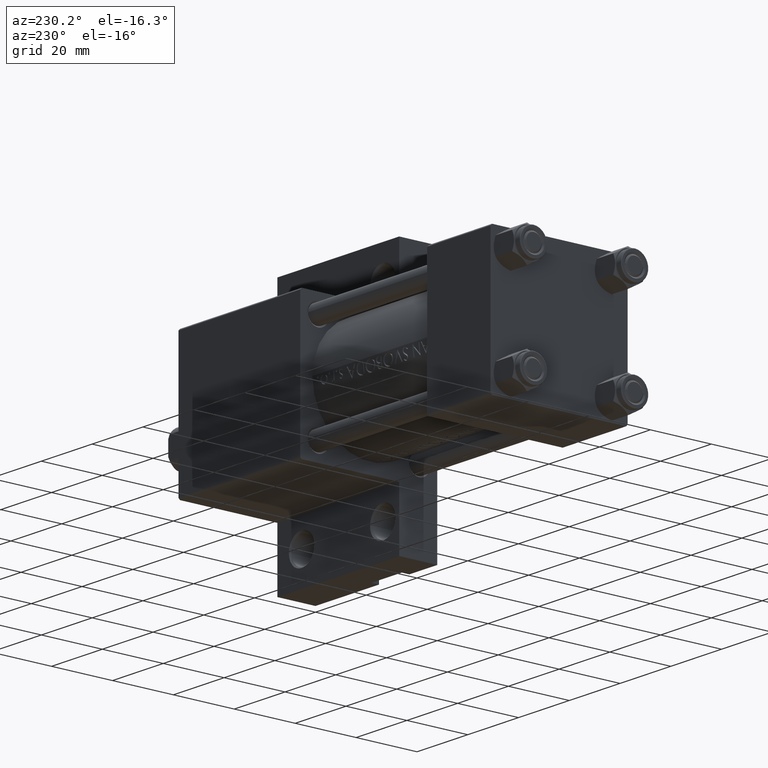
[diagram: clean part render]
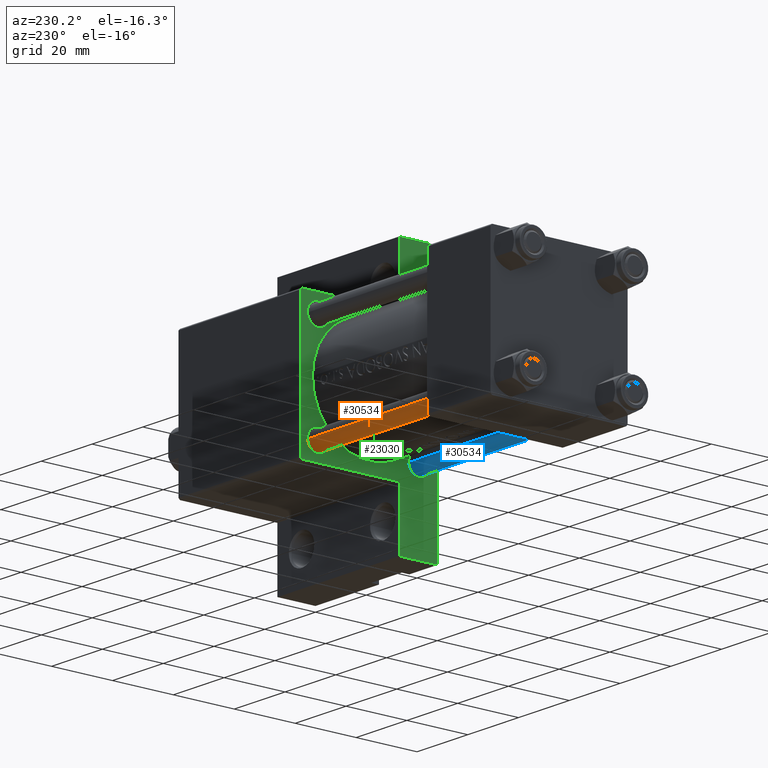
[diagram: same view with three faces highlighted in distinct colors, each labeled with its STEP entity id]
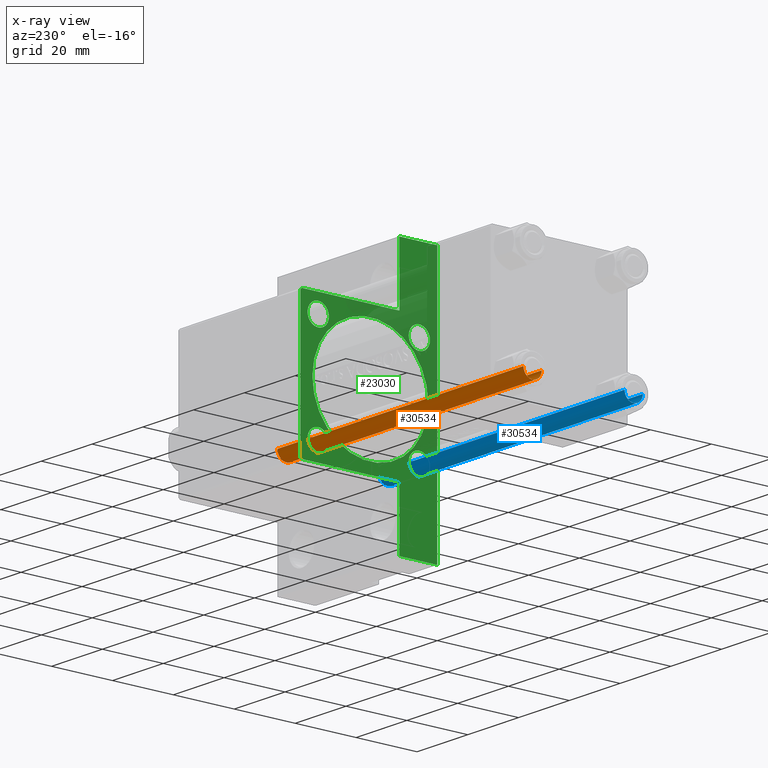
[diagram: x-ray of the same camera — body ghosted, the three highlighted faces saturated]
A machine part, auxiliary view with three faces highlighted in distinct colors.
The next image is the same camera in x-ray (body ghosted, the three faces saturated) — at least one of them is partly hidden behind the body in this view.
Their STEP definitions:

[orange] entity #30534 — the highlighted cylindrical surface (edge-blend (fillet) strip) has radius 3 mm, axis along (-1, -0, 0).
#365 = VERTEX_POINT ( 'NONE', #45875 ) ;
#1061 = LINE ( 'NONE', #38213, #12818 ) ;
#1791 = EDGE_CURVE ( 'NONE', #9709, #365, #16049, .T. ) ;
#3001 = CIRCLE ( 'NONE', #5349, 3.000000000000000444 ) ;
#3372 = VERTEX_POINT ( 'NONE', #23067 ) ;
#3384 = CARTESIAN_POINT ( 'NONE',  ( 3.000000000000000444, 3.673940397442060361E-16, 98.00000000000000000 ) ) ;
#5349 = AXIS2_PLACEMENT_3D ( 'NONE', #13788, #18122, #10887 ) ;
#7688 = EDGE_LOOP ( 'NONE', ( #22106, #36361, #37139, #12089 ) ) ;
#7711 = DIRECTION ( 'NONE',  ( -0.000000000000000000, -0.000000000000000000, -1.000000000000000000 ) ) ;
#8176 = DIRECTION ( 'NONE',  ( -1.000000000000000000, 0.000000000000000000, 0.000000000000000000 ) ) ;
#8416 = CYLINDRICAL_SURFACE ( 'NONE', #35685, 3.000000000000000444 ) ;
#9096 = AXIS2_PLACEMENT_3D ( 'NONE', #9799, #36086, #46955 ) ;
#9709 = VERTEX_POINT ( 'NONE', #46388 ) ;
#9799 = CARTESIAN_POINT ( 'NONE',  ( 0.000000000000000000, 0.000000000000000000, 97.50000000000001421 ) ) ;
#10887 = DIRECTION ( 'NONE',  ( 1.000000000000000000, 0.000000000000000000, 0.000000000000000000 ) ) ;
#12089 = ORIENTED_EDGE ( 'NONE', *, *, #20474, .T. ) ;
#12818 = VECTOR ( 'NONE', #15776, 1000.000000000000000 ) ;
#13788 = CARTESIAN_POINT ( 'NONE',  ( 0.000000000000000000, 0.000000000000000000, 0.5000000000000281997 ) ) ;
#15776 = DIRECTION ( 'NONE',  ( -0.000000000000000000, -0.000000000000000000, -1.000000000000000000 ) ) ;
#16049 = CIRCLE ( 'NONE', #9096, 3.000000000000000444 ) ;
#18122 = DIRECTION ( 'NONE',  ( -0.000000000000000000, -0.000000000000000000, 1.000000000000000000 ) ) ;
#20474 = EDGE_CURVE ( 'NONE', #3372, #41936, #3001, .T. ) ;
#22106 = ORIENTED_EDGE ( 'NONE', *, *, #32683, .F. ) ;
#23067 = CARTESIAN_POINT ( 'NONE',  ( -3.000000000000000444, 0.000000000000000000, 0.5000000000000281997 ) ) ;
#26272 = CARTESIAN_POINT ( 'NONE',  ( 0.000000000000000000, 0.000000000000000000, 98.00000000000000000 ) ) ;
#29231 = CARTESIAN_POINT ( 'NONE',  ( 3.000000000000000444, 3.673940397442060361E-16, 0.5000000000000281997 ) ) ;
#30534 = ADVANCED_FACE ( 'NONE', ( #33745 ), #8416, .T. ) ;
#32683 = EDGE_CURVE ( 'NONE', #9709, #41936, #37373, .T. ) ;
#33745 = FACE_OUTER_BOUND ( 'NONE', #7688, .T. ) ;
#35685 = AXIS2_PLACEMENT_3D ( 'NONE', #26272, #7711, #8176 ) ;
#36086 = DIRECTION ( 'NONE',  ( 0.000000000000000000, 0.000000000000000000, -1.000000000000000000 ) ) ;
#36361 = ORIENTED_EDGE ( 'NONE', *, *, #1791, .T. ) ;
#37139 = ORIENTED_EDGE ( 'NONE', *, *, #39284, .T. ) ;
#37373 = LINE ( 'NONE', #3384, #41015 ) ;
#38213 = CARTESIAN_POINT ( 'NONE',  ( -3.000000000000000444, 0.000000000000000000, 98.00000000000000000 ) ) ;
#39284 = EDGE_CURVE ( 'NONE', #365, #3372, #1061, .T. ) ;
#41015 = VECTOR ( 'NONE', #44384, 1000.000000000000000 ) ;
#41936 = VERTEX_POINT ( 'NONE', #29231 ) ;
#44384 = DIRECTION ( 'NONE',  ( -0.000000000000000000, -0.000000000000000000, -1.000000000000000000 ) ) ;
#45875 = CARTESIAN_POINT ( 'NONE',  ( -3.000000000000000444, 0.000000000000000000, 97.50000000000001421 ) ) ;
#46388 = CARTESIAN_POINT ( 'NONE',  ( 3.000000000000000444, 3.673940397442060361E-16, 97.50000000000001421 ) ) ;
#46955 = DIRECTION ( 'NONE',  ( 1.000000000000000000, 0.000000000000000000, 0.000000000000000000 ) ) ;

[blue] entity #30534 — the highlighted cylindrical surface (edge-blend (fillet) strip) has radius 3 mm, axis along (1, 0, 0).
#365 = VERTEX_POINT ( 'NONE', #45875 ) ;
#1061 = LINE ( 'NONE', #38213, #12818 ) ;
#1791 = EDGE_CURVE ( 'NONE', #9709, #365, #16049, .T. ) ;
#3001 = CIRCLE ( 'NONE', #5349, 3.000000000000000444 ) ;
#3372 = VERTEX_POINT ( 'NONE', #23067 ) ;
#3384 = CARTESIAN_POINT ( 'NONE',  ( 3.000000000000000444, 3.673940397442060361E-16, 98.00000000000000000 ) ) ;
#5349 = AXIS2_PLACEMENT_3D ( 'NONE', #13788, #18122, #10887 ) ;
#7688 = EDGE_LOOP ( 'NONE', ( #22106, #36361, #37139, #12089 ) ) ;
#7711 = DIRECTION ( 'NONE',  ( -0.000000000000000000, -0.000000000000000000, -1.000000000000000000 ) ) ;
#8176 = DIRECTION ( 'NONE',  ( -1.000000000000000000, 0.000000000000000000, 0.000000000000000000 ) ) ;
#8416 = CYLINDRICAL_SURFACE ( 'NONE', #35685, 3.000000000000000444 ) ;
#9096 = AXIS2_PLACEMENT_3D ( 'NONE', #9799, #36086, #46955 ) ;
#9709 = VERTEX_POINT ( 'NONE', #46388 ) ;
#9799 = CARTESIAN_POINT ( 'NONE',  ( 0.000000000000000000, 0.000000000000000000, 97.50000000000001421 ) ) ;
#10887 = DIRECTION ( 'NONE',  ( 1.000000000000000000, 0.000000000000000000, 0.000000000000000000 ) ) ;
#12089 = ORIENTED_EDGE ( 'NONE', *, *, #20474, .T. ) ;
#12818 = VECTOR ( 'NONE', #15776, 1000.000000000000000 ) ;
#13788 = CARTESIAN_POINT ( 'NONE',  ( 0.000000000000000000, 0.000000000000000000, 0.5000000000000281997 ) ) ;
#15776 = DIRECTION ( 'NONE',  ( -0.000000000000000000, -0.000000000000000000, -1.000000000000000000 ) ) ;
#16049 = CIRCLE ( 'NONE', #9096, 3.000000000000000444 ) ;
#18122 = DIRECTION ( 'NONE',  ( -0.000000000000000000, -0.000000000000000000, 1.000000000000000000 ) ) ;
#20474 = EDGE_CURVE ( 'NONE', #3372, #41936, #3001, .T. ) ;
#22106 = ORIENTED_EDGE ( 'NONE', *, *, #32683, .F. ) ;
#23067 = CARTESIAN_POINT ( 'NONE',  ( -3.000000000000000444, 0.000000000000000000, 0.5000000000000281997 ) ) ;
#26272 = CARTESIAN_POINT ( 'NONE',  ( 0.000000000000000000, 0.000000000000000000, 98.00000000000000000 ) ) ;
#29231 = CARTESIAN_POINT ( 'NONE',  ( 3.000000000000000444, 3.673940397442060361E-16, 0.5000000000000281997 ) ) ;
#30534 = ADVANCED_FACE ( 'NONE', ( #33745 ), #8416, .T. ) ;
#32683 = EDGE_CURVE ( 'NONE', #9709, #41936, #37373, .T. ) ;
#33745 = FACE_OUTER_BOUND ( 'NONE', #7688, .T. ) ;
#35685 = AXIS2_PLACEMENT_3D ( 'NONE', #26272, #7711, #8176 ) ;
#36086 = DIRECTION ( 'NONE',  ( 0.000000000000000000, 0.000000000000000000, -1.000000000000000000 ) ) ;
#36361 = ORIENTED_EDGE ( 'NONE', *, *, #1791, .T. ) ;
#37139 = ORIENTED_EDGE ( 'NONE', *, *, #39284, .T. ) ;
#37373 = LINE ( 'NONE', #3384, #41015 ) ;
#38213 = CARTESIAN_POINT ( 'NONE',  ( -3.000000000000000444, 0.000000000000000000, 98.00000000000000000 ) ) ;
#39284 = EDGE_CURVE ( 'NONE', #365, #3372, #1061, .T. ) ;
#41015 = VECTOR ( 'NONE', #44384, 1000.000000000000000 ) ;
#41936 = VERTEX_POINT ( 'NONE', #29231 ) ;
#44384 = DIRECTION ( 'NONE',  ( -0.000000000000000000, -0.000000000000000000, -1.000000000000000000 ) ) ;
#45875 = CARTESIAN_POINT ( 'NONE',  ( -3.000000000000000444, 0.000000000000000000, 97.50000000000001421 ) ) ;
#46388 = CARTESIAN_POINT ( 'NONE',  ( 3.000000000000000444, 3.673940397442060361E-16, 97.50000000000001421 ) ) ;
#46955 = DIRECTION ( 'NONE',  ( 1.000000000000000000, 0.000000000000000000, 0.000000000000000000 ) ) ;

[green] entity #23030 — the highlighted planar face has unit normal (-1, 0, -0).
#224 = VERTEX_POINT ( 'NONE', #21769 ) ;
#231 = VECTOR ( 'NONE', #31879, 1000.000000000000000 ) ;
#462 = CARTESIAN_POINT ( 'NONE',  ( 75.00000000000001421, -16.59999999999999076, -16.60000000000000853 ) ) ;
#769 = ORIENTED_EDGE ( 'NONE', *, *, #26399, .T. ) ;
#1302 = DIRECTION ( 'NONE',  ( 7.116814260417666541E-16, 1.000000000000000000, 0.000000000000000000 ) ) ;
#1374 = CIRCLE ( 'NONE', #6751, 3.500000000000003109 ) ;
#1518 = ORIENTED_EDGE ( 'NONE', *, *, #12404, .F. ) ;
#1799 = VECTOR ( 'NONE', #38223, 1000.000000000000000 ) ;
#1834 = CARTESIAN_POINT ( 'NONE',  ( 75.00000000000001421, 22.24999999999999645, 22.24999999999999645 ) ) ;
#2127 = CIRCLE ( 'NONE', #23710, 3.500000000000006661 ) ;
#2253 = VERTEX_POINT ( 'NONE', #9680 ) ;
#2325 = AXIS2_PLACEMENT_3D ( 'NONE', #45989, #2782, #17496 ) ;
#2342 = VECTOR ( 'NONE', #38284, 1000.000000000000000 ) ;
#2587 = CARTESIAN_POINT ( 'NONE',  ( 75.00000000000001421, 16.59999999999999787, -16.60000000000000497 ) ) ;
#2600 = ORIENTED_EDGE ( 'NONE', *, *, #8535, .T. ) ;
#2782 = DIRECTION ( 'NONE',  ( -1.000000000000000000, 0.000000000000000000, -0.000000000000000000 ) ) ;
#3056 = ORIENTED_EDGE ( 'NONE', *, *, #5781, .F. ) ;
#3662 = AXIS2_PLACEMENT_3D ( 'NONE', #28884, #39743, #36359 ) ;
#4000 = CARTESIAN_POINT ( 'NONE',  ( 75.00000000000001421, 16.59999999999999787, 13.10000000000000142 ) ) ;
#4239 = EDGE_CURVE ( 'NONE', #14520, #2253, #20179, .T. ) ;
#4253 = ORIENTED_EDGE ( 'NONE', *, *, #34512, .T. ) ;
#5260 = AXIS2_PLACEMENT_3D ( 'NONE', #23986, #34857, #45242 ) ;
#5306 = DIRECTION ( 'NONE',  ( 0.000000000000000000, 0.000000000000000000, -1.000000000000000000 ) ) ;
#5376 = CARTESIAN_POINT ( 'NONE',  ( 75.00000000000001421, 16.59999999999999787, 16.60000000000000497 ) ) ;
#5527 = AXIS2_PLACEMENT_3D ( 'NONE', #17443, #28298, #39409 ) ;
#5720 = CIRCLE ( 'NONE', #25735, 3.500000000000006661 ) ;
#5781 = EDGE_CURVE ( 'NONE', #43858, #2253, #35501, .T. ) ;
#6011 = AXIS2_PLACEMENT_3D ( 'NONE', #16954, #20810, #28055 ) ;
#6235 = VERTEX_POINT ( 'NONE', #47312 ) ;
#6271 = DIRECTION ( 'NONE',  ( -0.000000000000000000, 1.000000000000000000, -0.000000000000000000 ) ) ;
#6415 = FACE_BOUND ( 'NONE', #30382, .T. ) ;
#6689 = VERTEX_POINT ( 'NONE', #43106 ) ;
#6751 = AXIS2_PLACEMENT_3D ( 'NONE', #7910, #47740, #14921 ) ;
#7383 = ORIENTED_EDGE ( 'NONE', *, *, #28926, .T. ) ;
#7910 = CARTESIAN_POINT ( 'NONE',  ( 75.00000000000001421, -16.59999999999999076, 16.60000000000000853 ) ) ;
#8395 = VERTEX_POINT ( 'NONE', #44895 ) ;
#8491 = EDGE_CURVE ( 'NONE', #39035, #35746, #13727, .T. ) ;
#8535 = EDGE_CURVE ( 'NONE', #43446, #45725, #5720, .T. ) ;
#9031 = VECTOR ( 'NONE', #5306, 1000.000000000000000 ) ;
#9101 = VECTOR ( 'NONE', #42742, 1000.000000000000000 ) ;
#9680 = CARTESIAN_POINT ( 'NONE',  ( 75.00000000000000000, -42.00000000000000711, -22.50000000000000000 ) ) ;
#10007 = LINE ( 'NONE', #28580, #33264 ) ;
#10670 = CIRCLE ( 'NONE', #29938, 3.499999999999999556 ) ;
#10794 = ORIENTED_EDGE ( 'NONE', *, *, #43242, .T. ) ;
#11369 = EDGE_CURVE ( 'NONE', #43858, #6235, #30716, .T. ) ;
#12015 = CARTESIAN_POINT ( 'NONE',  ( 75.00000000000000000, -42.00000000000000711, -9.999999999999998224 ) ) ;
#12404 = EDGE_CURVE ( 'NONE', #44348, #6235, #27269, .T. ) ;
#12585 = CARTESIAN_POINT ( 'NONE',  ( 75.00000000000001421, -22.24999999999998579, 22.24999999999998579 ) ) ;
#12611 = DIRECTION ( 'NONE',  ( 0.000000000000000000, 0.000000000000000000, 1.000000000000000000 ) ) ;
#12813 = DIRECTION ( 'NONE',  ( -0.000000000000000000, 0.7071067811865474617, 0.7071067811865474617 ) ) ;
#12854 = EDGE_LOOP ( 'NONE', ( #46010, #41790 ) ) ;
#12893 = CIRCLE ( 'NONE', #3662, 19.00000000000000000 ) ;
#12930 = CIRCLE ( 'NONE', #6011, 3.500000000000003109 ) ;
#13307 = LINE ( 'NONE', #31876, #9101 ) ;
#13612 = EDGE_CURVE ( 'NONE', #41094, #25643, #12893, .T. ) ;
#13727 = LINE ( 'NONE', #20735, #38843 ) ;
#13975 = EDGE_CURVE ( 'NONE', #45047, #224, #12930, .T. ) ;
#14370 = VERTEX_POINT ( 'NONE', #20835 ) ;
#14520 = VERTEX_POINT ( 'NONE', #45407 ) ;
#14695 = EDGE_CURVE ( 'NONE', #28425, #39035, #13307, .T. ) ;
#14921 = DIRECTION ( 'NONE',  ( 0.000000000000000000, 0.000000000000000000, 1.000000000000000000 ) ) ;
#15700 = EDGE_LOOP ( 'NONE', ( #32500, #7383, #30137, #18452, #4253, #37862, #3056, #17992, #1518, #26211 ) ) ;
#15994 = EDGE_LOOP ( 'NONE', ( #19168, #17613 ) ) ;
#16017 = LINE ( 'NONE', #44512, #1799 ) ;
#16910 = ORIENTED_EDGE ( 'NONE', *, *, #32721, .T. ) ;
#16954 = CARTESIAN_POINT ( 'NONE',  ( 75.00000000000001421, -16.59999999999999076, 16.60000000000000853 ) ) ;
#17026 = FACE_BOUND ( 'NONE', #15994, .T. ) ;
#17166 = CARTESIAN_POINT ( 'NONE',  ( 75.00000000000000000, -42.00000000000000711, -9.999999999999998224 ) ) ;
#17248 = DIRECTION ( 'NONE',  ( 0.000000000000000000, -1.000000000000000000, -2.312964634635742957E-16 ) ) ;
#17443 = CARTESIAN_POINT ( 'NONE',  ( 75.00000000000001421, 16.59999999999999787, 16.60000000000000497 ) ) ;
#17496 = DIRECTION ( 'NONE',  ( -0.000000000000000000, 0.000000000000000000, 1.000000000000000000 ) ) ;
#17613 = ORIENTED_EDGE ( 'NONE', *, *, #41031, .T. ) ;
#17910 = VECTOR ( 'NONE', #38741, 1000.000000000000114 ) ;
#17992 = ORIENTED_EDGE ( 'NONE', *, *, #11369, .T. ) ;
#18132 = CARTESIAN_POINT ( 'NONE',  ( 75.00000000000001421, 16.59999999999999787, -13.09999999999999787 ) ) ;
#18297 = CARTESIAN_POINT ( 'NONE',  ( 75.00000000000001421, 16.59999999999999787, -16.60000000000000497 ) ) ;
#18452 = ORIENTED_EDGE ( 'NONE', *, *, #8491, .T. ) ;
#18491 = VERTEX_POINT ( 'NONE', #32083 ) ;
#18528 = CARTESIAN_POINT ( 'NONE',  ( 75.00000000000001421, 6.123233995736727825E-17, 18.50000000000000355 ) ) ;
#19168 = ORIENTED_EDGE ( 'NONE', *, *, #13975, .T. ) ;
#19606 = DIRECTION ( 'NONE',  ( 1.000000000000000000, -0.000000000000000000, 0.000000000000000000 ) ) ;
#20082 = VECTOR ( 'NONE', #12813, 1000.000000000000114 ) ;
#20179 = LINE ( 'NONE', #23555, #2342 ) ;
#20690 = EDGE_CURVE ( 'NONE', #45725, #43446, #29956, .T. ) ;
#20735 = CARTESIAN_POINT ( 'NONE',  ( 75.00000000000001421, 42.00000000000000711, -9.999999999999998224 ) ) ;
#20810 = DIRECTION ( 'NONE',  ( 1.000000000000000000, -0.000000000000000000, 0.000000000000000000 ) ) ;
#20835 = CARTESIAN_POINT ( 'NONE',  ( 75.00000000000001421, -21.99999999999996803, 22.49999999999999289 ) ) ;
#21119 = FACE_BOUND ( 'NONE', #12854, .T. ) ;
#21769 = CARTESIAN_POINT ( 'NONE',  ( 75.00000000000001421, -16.59999999999999076, 13.10000000000000142 ) ) ;
#21895 = CARTESIAN_POINT ( 'NONE',  ( 75.00000000000001421, 2.388061258337338150E-15, -19.49999999999999645 ) ) ;
#22174 = DIRECTION ( 'NONE',  ( 1.000000000000000000, -0.000000000000000000, 0.000000000000000000 ) ) ;
#22449 = DIRECTION ( 'NONE',  ( 1.000000000000000000, -0.000000000000000000, 0.000000000000000000 ) ) ;
#22510 = CARTESIAN_POINT ( 'NONE',  ( 75.00000000000001421, -16.59999999999999076, -13.10000000000000142 ) ) ;
#22525 = CARTESIAN_POINT ( 'NONE',  ( 75.00000000000001421, -22.49999999999999645, 21.99999999999997868 ) ) ;
#23030 = ADVANCED_FACE ( 'NONE', ( #17026, #31972, #28353, #6415, #21119, #31256 ), #35833, .T. ) ;
#23202 = CARTESIAN_POINT ( 'NONE',  ( 75.00000000000001421, 42.00000000000000711, -9.999999999999998224 ) ) ;
#23555 = CARTESIAN_POINT ( 'NONE',  ( 75.00000000000001421, 22.50000000000000355, -22.49999999999999645 ) ) ;
#23635 = CARTESIAN_POINT ( 'NONE',  ( 75.00000000000001421, -22.49999999999999645, 22.49999999999999289 ) ) ;
#23710 = AXIS2_PLACEMENT_3D ( 'NONE', #29916, #22449, #37405 ) ;
#23986 = CARTESIAN_POINT ( 'NONE',  ( 75.00000000000001421, 6.123233995736727825E-17, -0.4999999999999970024 ) ) ;
#24492 = EDGE_CURVE ( 'NONE', #44348, #14370, #45883, .T. ) ;
#24722 = LINE ( 'NONE', #1834, #17910 ) ;
#25643 = VERTEX_POINT ( 'NONE', #21895 ) ;
#25735 = AXIS2_PLACEMENT_3D ( 'NONE', #18297, #33016, #47033 ) ;
#26046 = CIRCLE ( 'NONE', #5260, 19.00000000000000000 ) ;
#26211 = ORIENTED_EDGE ( 'NONE', *, *, #24492, .T. ) ;
#26399 = EDGE_CURVE ( 'NONE', #41474, #6689, #30922, .T. ) ;
#27269 = LINE ( 'NONE', #23635, #9031 ) ;
#28055 = DIRECTION ( 'NONE',  ( 0.000000000000000000, 0.000000000000000000, 1.000000000000000000 ) ) ;
#28222 = VERTEX_POINT ( 'NONE', #22510 ) ;
#28298 = DIRECTION ( 'NONE',  ( 1.000000000000000000, -0.000000000000000000, 0.000000000000000000 ) ) ;
#28353 = FACE_BOUND ( 'NONE', #42279, .T. ) ;
#28425 = VERTEX_POINT ( 'NONE', #39791 ) ;
#28580 = CARTESIAN_POINT ( 'NONE',  ( 75.00000000000001421, 22.50000000000000355, 22.50000000000000355 ) ) ;
#28884 = CARTESIAN_POINT ( 'NONE',  ( 75.00000000000001421, 6.123233995736727825E-17, -0.4999999999999970024 ) ) ;
#28926 = EDGE_CURVE ( 'NONE', #18491, #28425, #24722, .T. ) ;
#29916 = CARTESIAN_POINT ( 'NONE',  ( 75.00000000000001421, -16.59999999999999076, -16.60000000000000853 ) ) ;
#29938 = AXIS2_PLACEMENT_3D ( 'NONE', #5376, #19606, #12611 ) ;
#29956 = CIRCLE ( 'NONE', #45402, 3.500000000000006661 ) ;
#30137 = ORIENTED_EDGE ( 'NONE', *, *, #14695, .T. ) ;
#30382 = EDGE_LOOP ( 'NONE', ( #34395, #16910 ) ) ;
#30716 = LINE ( 'NONE', #37980, #34174 ) ;
#30873 = DIRECTION ( 'NONE',  ( 1.000000000000000000, -0.000000000000000000, 0.000000000000000000 ) ) ;
#30922 = CIRCLE ( 'NONE', #5527, 3.499999999999999556 ) ;
#31102 = EDGE_LOOP ( 'NONE', ( #10794, #769 ) ) ;
#31256 = FACE_OUTER_BOUND ( 'NONE', #15700, .T. ) ;
#31262 = EDGE_CURVE ( 'NONE', #18491, #14370, #10007, .T. ) ;
#31876 = CARTESIAN_POINT ( 'NONE',  ( 75.00000000000001421, 22.50000000000000355, 22.50000000000000355 ) ) ;
#31879 = DIRECTION ( 'NONE',  ( 0.000000000000000000, 0.000000000000000000, -1.000000000000000000 ) ) ;
#31972 = FACE_BOUND ( 'NONE', #31102, .T. ) ;
#32083 = CARTESIAN_POINT ( 'NONE',  ( 75.00000000000001421, 21.99999999999998934, 22.50000000000000355 ) ) ;
#32500 = ORIENTED_EDGE ( 'NONE', *, *, #31262, .F. ) ;
#32721 = EDGE_CURVE ( 'NONE', #8395, #28222, #38724, .T. ) ;
#33016 = DIRECTION ( 'NONE',  ( 1.000000000000000000, -0.000000000000000000, 0.000000000000000000 ) ) ;
#33264 = VECTOR ( 'NONE', #17248, 1000.000000000000000 ) ;
#34174 = VECTOR ( 'NONE', #1302, 1000.000000000000000 ) ;
#34395 = ORIENTED_EDGE ( 'NONE', *, *, #40784, .T. ) ;
#34512 = EDGE_CURVE ( 'NONE', #35746, #14520, #16017, .T. ) ;
#34857 = DIRECTION ( 'NONE',  ( 1.000000000000000000, 0.000000000000000000, 0.000000000000000000 ) ) ;
#35501 = LINE ( 'NONE', #17166, #231 ) ;
#35746 = VERTEX_POINT ( 'NONE', #23202 ) ;
#35833 = PLANE ( 'NONE',  #2325 ) ;
#36089 = CARTESIAN_POINT ( 'NONE',  ( 75.00000000000001421, -16.59999999999999076, 20.10000000000001208 ) ) ;
#36359 = DIRECTION ( 'NONE',  ( 0.000000000000000000, 0.000000000000000000, -1.000000000000000000 ) ) ;
#37405 = DIRECTION ( 'NONE',  ( 0.000000000000000000, 0.000000000000000000, 1.000000000000000000 ) ) ;
#37862 = ORIENTED_EDGE ( 'NONE', *, *, #4239, .T. ) ;
#37980 = CARTESIAN_POINT ( 'NONE',  ( 75.00000000000000000, -42.00000000000000711, -9.999999999999998224 ) ) ;
#38223 = DIRECTION ( 'NONE',  ( 0.000000000000000000, 0.000000000000000000, -1.000000000000000000 ) ) ;
#38284 = DIRECTION ( 'NONE',  ( 0.000000000000000000, -1.000000000000000000, -7.709882115452476934E-17 ) ) ;
#38724 = CIRCLE ( 'NONE', #44880, 3.500000000000006661 ) ;
#38741 = DIRECTION ( 'NONE',  ( 0.000000000000000000, 0.7071067811865474617, -0.7071067811865474617 ) ) ;
#38843 = VECTOR ( 'NONE', #6271, 1000.000000000000000 ) ;
#39035 = VERTEX_POINT ( 'NONE', #42435 ) ;
#39409 = DIRECTION ( 'NONE',  ( 0.000000000000000000, 0.000000000000000000, 1.000000000000000000 ) ) ;
#39743 = DIRECTION ( 'NONE',  ( 1.000000000000000000, 0.000000000000000000, 0.000000000000000000 ) ) ;
#39791 = CARTESIAN_POINT ( 'NONE',  ( 75.00000000000001421, 22.50000000000000355, 21.99999999999998934 ) ) ;
#40287 = DIRECTION ( 'NONE',  ( 0.000000000000000000, 0.000000000000000000, 1.000000000000000000 ) ) ;
#40784 = EDGE_CURVE ( 'NONE', #28222, #8395, #2127, .T. ) ;
#41031 = EDGE_CURVE ( 'NONE', #224, #45047, #1374, .T. ) ;
#41094 = VERTEX_POINT ( 'NONE', #18528 ) ;
#41474 = VERTEX_POINT ( 'NONE', #4000 ) ;
#41790 = ORIENTED_EDGE ( 'NONE', *, *, #42166, .T. ) ;
#42166 = EDGE_CURVE ( 'NONE', #25643, #41094, #26046, .T. ) ;
#42279 = EDGE_LOOP ( 'NONE', ( #2600, #43839 ) ) ;
#42435 = CARTESIAN_POINT ( 'NONE',  ( 75.00000000000001421, 22.50000000000000355, -9.999999999999984013 ) ) ;
#42742 = DIRECTION ( 'NONE',  ( 0.000000000000000000, 0.000000000000000000, -1.000000000000000000 ) ) ;
#43106 = CARTESIAN_POINT ( 'NONE',  ( 75.00000000000001421, 16.59999999999999787, 20.10000000000000853 ) ) ;
#43118 = DIRECTION ( 'NONE',  ( 0.000000000000000000, 0.000000000000000000, 1.000000000000000000 ) ) ;
#43242 = EDGE_CURVE ( 'NONE', #6689, #41474, #10670, .T. ) ;
#43446 = VERTEX_POINT ( 'NONE', #18132 ) ;
#43839 = ORIENTED_EDGE ( 'NONE', *, *, #20690, .T. ) ;
#43858 = VERTEX_POINT ( 'NONE', #12015 ) ;
#44176 = CARTESIAN_POINT ( 'NONE',  ( 75.00000000000001421, 16.59999999999999787, -20.10000000000000853 ) ) ;
#44348 = VERTEX_POINT ( 'NONE', #22525 ) ;
#44512 = CARTESIAN_POINT ( 'NONE',  ( 75.00000000000001421, 42.00000000000000711, -9.999999999999998224 ) ) ;
#44880 = AXIS2_PLACEMENT_3D ( 'NONE', #462, #22174, #40287 ) ;
#44895 = CARTESIAN_POINT ( 'NONE',  ( 75.00000000000001421, -16.59999999999999076, -20.10000000000001208 ) ) ;
#45047 = VERTEX_POINT ( 'NONE', #36089 ) ;
#45242 = DIRECTION ( 'NONE',  ( 0.000000000000000000, 0.000000000000000000, -1.000000000000000000 ) ) ;
#45402 = AXIS2_PLACEMENT_3D ( 'NONE', #2587, #30873, #43118 ) ;
#45407 = CARTESIAN_POINT ( 'NONE',  ( 75.00000000000001421, 42.00000000000000711, -22.50000000000000000 ) ) ;
#45725 = VERTEX_POINT ( 'NONE', #44176 ) ;
#45883 = LINE ( 'NONE', #12585, #20082 ) ;
#45989 = CARTESIAN_POINT ( 'NONE',  ( 75.00000000000001421, 0.000000000000000000, 0.000000000000000000 ) ) ;
#46010 = ORIENTED_EDGE ( 'NONE', *, *, #13612, .T. ) ;
#47033 = DIRECTION ( 'NONE',  ( 0.000000000000000000, 0.000000000000000000, 1.000000000000000000 ) ) ;
#47312 = CARTESIAN_POINT ( 'NONE',  ( 75.00000000000001421, -22.50000000000000000, -9.999999999999998224 ) ) ;
#47740 = DIRECTION ( 'NONE',  ( 1.000000000000000000, -0.000000000000000000, 0.000000000000000000 ) ) ;